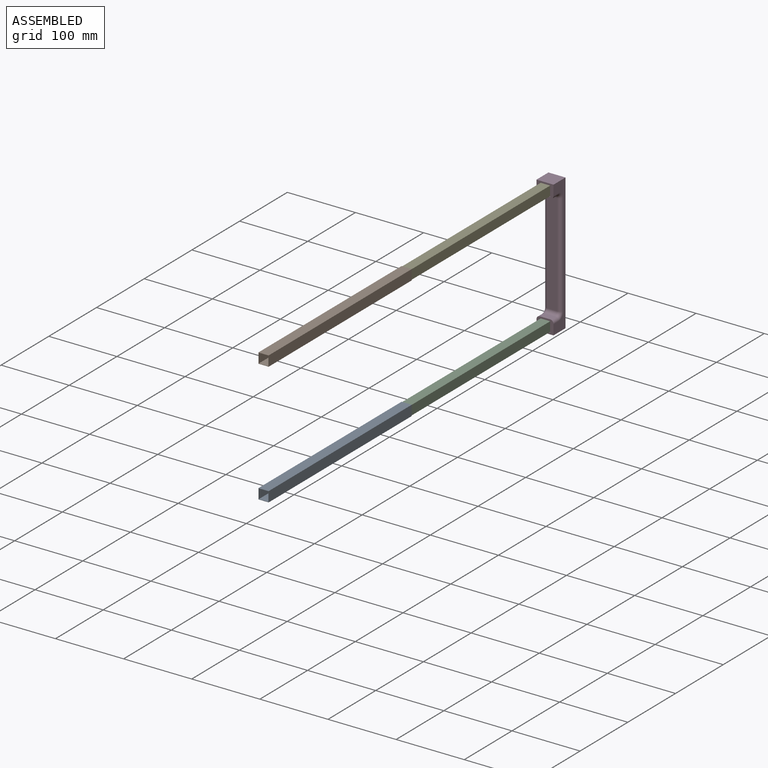
[diagram: assembled view]
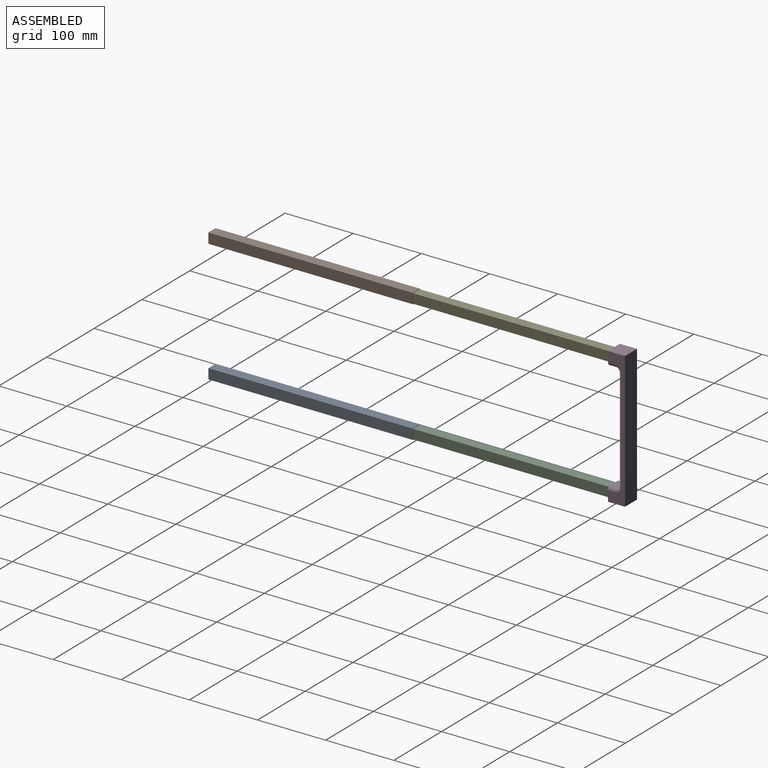
[diagram: assembled view, second angle]
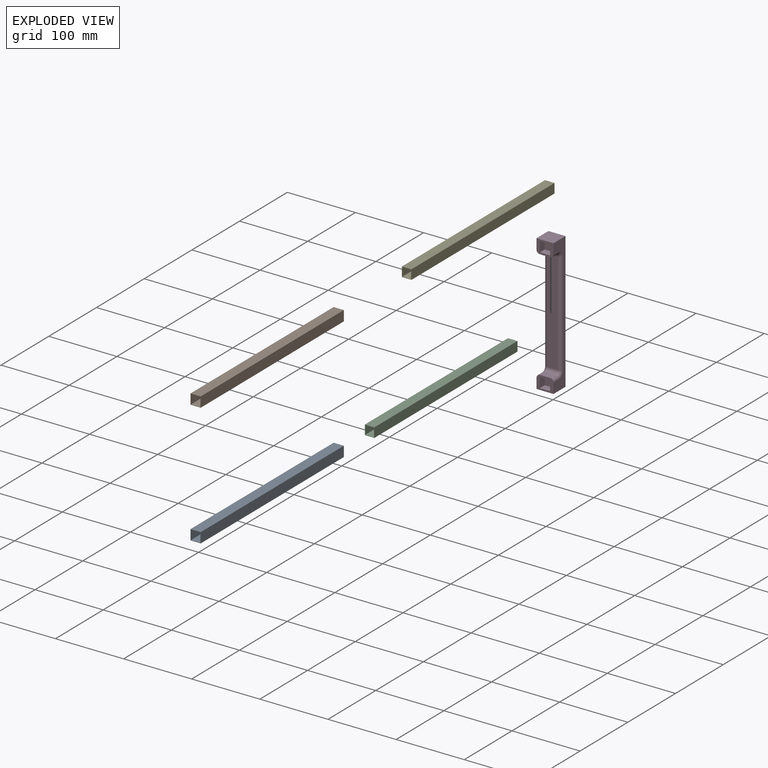
[diagram: exploded view]
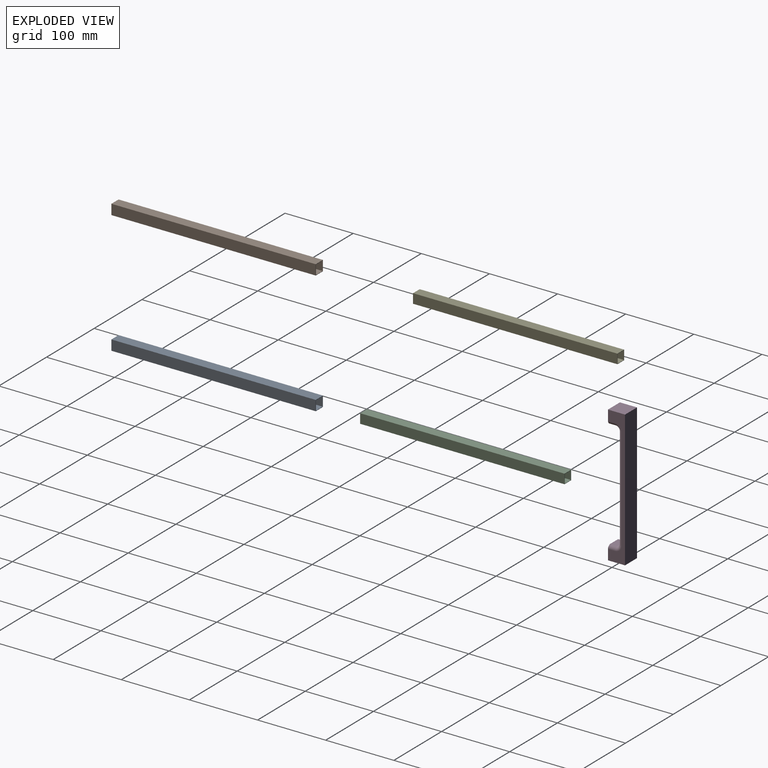
[diagram: exploded view, second angle]
ASSEMBLY  parts=5 mates=4
PART A: 20 faces, bbox 15x300x15 mm
  f0: plane 300x15mm, normal (0,0,1), area 4500mm2, adj f1,f7,f8,f9
  f1: plane 300x15mm, normal (-1,0,0), area 4500mm2, adj f0,f2,f8,f9
  f2: plane 300x15mm, normal (0,0,-1), area 4500mm2, adj f1,f7,f8,f9
  f3: plane 300x14mm, normal (1,0,0), area 4200mm2, adj f4,f6,f8,f9
  f4: plane 300x14mm, normal (0,0,-1), area 4200mm2, adj f3,f5,f8,f9
  f5: plane 300x14mm, normal (-1,0,0), area 4200mm2, adj f4,f6,f8,f9
  f6: plane 300x14mm, normal (0,0,1), area 4200mm2, adj f3,f5,f8,f9
  f7: plane 300x15mm, normal (1,0,0), area 4500mm2, adj f0,f2,f8,f9
  f8: plane 15x15mm, normal (0,-1,0), area 29mm2, adj f0,f1,f2,f3,f4,f5,f6,f7
  f9: plane 15x15mm, normal (0,1,0), area 29mm2, adj f0,f1,f2,f3,f4,f5,f6,f7
  f10: plane 299.6x14.6mm, normal (0,0,-1), area 4374.2mm2, adj f11,f17,f18,f19
  f11: plane 299.6x14.6mm, normal (1,0,0), area 4374.2mm2, adj f10,f12,f18,f19
  f12: plane 299.6x14.6mm, normal (0,0,1), area 4374.2mm2, adj f11,f17,f18,f19
  f13: plane 299.6x14.4mm, normal (-1,0,0), area 4314.2mm2, adj f14,f16,f18,f19
  f14: plane 299.6x14.4mm, normal (0,0,1), area 4314.2mm2, adj f13,f15,f18,f19
  f15: plane 299.6x14.4mm, normal (1,0,0), area 4314.2mm2, adj f14,f16,f18,f19
  f16: plane 299.6x14.4mm, normal (0,0,-1), area 4314.2mm2, adj f13,f15,f18,f19
  f17: plane 299.6x14.6mm, normal (-1,0,0), area 4374.2mm2, adj f10,f12,f18,f19
  f18: plane 14.6x14.6mm, normal (0,1,0), area 5.8mm2, adj f10,f11,f12,f13,f14,f15,f16,f17
  f19: plane 14.6x14.6mm, normal (0,-1,0), area 5.8mm2, adj f10,f11,f12,f13,f14,f15,f16,f17
PART B: same geometry as A
PART C: 20 faces, bbox 14x300x14 mm
  f0: plane 14x14mm, normal (0,-1,0), area 27mm2, adj f2,f3,f4,f5,f6,f7,f8,f9
  f1: plane 14x14mm, normal (0,1,0), area 27mm2, adj f2,f3,f4,f5,f6,f7,f8,f9
  f2: plane 300x14mm, normal (0,0,1), area 4200mm2, adj f0,f1,f3,f5
  f3: plane 300x14mm, normal (-1,0,0), area 4200mm2, adj f0,f1,f2,f4
  f4: plane 300x14mm, normal (0,0,-1), area 4200mm2, adj f0,f1,f3,f5
  f5: plane 300x14mm, normal (1,0,0), area 4200mm2, adj f0,f1,f2,f4
  f6: plane 300x13mm, normal (1,0,0), area 3900mm2, adj f0,f1,f7,f9
  f7: plane 300x13mm, normal (0,0,-1), area 3900mm2, adj f0,f1,f6,f8
  f8: plane 300x13mm, normal (-1,0,0), area 3900mm2, adj f0,f1,f7,f9
  f9: plane 300x13mm, normal (0,0,1), area 3900mm2, adj f0,f1,f6,f8
  f10: plane 13.6x13.6mm, normal (0,1,0), area 5.4mm2, adj f12,f13,f14,f15,f16,f17,f18,f19
  f11: plane 13.6x13.6mm, normal (0,-1,0), area 5.4mm2, adj f12,f13,f14,f15,f16,f17,f18,f19
  f12: plane 299.6x13.6mm, normal (0,0,-1), area 4074.6mm2, adj f10,f11,f13,f15
  f13: plane 299.6x13.6mm, normal (1,0,0), area 4074.6mm2, adj f10,f11,f12,f14
  f14: plane 299.6x13.6mm, normal (0,0,1), area 4074.6mm2, adj f10,f11,f13,f15
  f15: plane 299.6x13.6mm, normal (-1,0,0), area 4074.6mm2, adj f10,f11,f12,f14
  f16: plane 299.6x13.4mm, normal (-1,0,0), area 4014.6mm2, adj f10,f11,f17,f19
  f17: plane 299.6x13.4mm, normal (0,0,1), area 4014.6mm2, adj f10,f11,f16,f18
  f18: plane 299.6x13.4mm, normal (1,0,0), area 4014.6mm2, adj f10,f11,f17,f19
  f19: plane 299.6x13.4mm, normal (0,0,-1), area 4014.6mm2, adj f10,f11,f16,f18
PART D: 32 faces, bbox 200x25x25 mm
  f0: plane 25x20mm, normal (0,-1,0), area 264.3mm2, adj f3,f4,f8,f9,f10,f11,f12,f13
  f1: plane 25x25mm, normal (1,0,0), area 625mm2, adj f2,f7,f8,f9
  f2: plane 200x25mm, normal (0,1,0), area 5000mm2, adj f1,f3,f8,f9
  f3: plane 25x25mm, normal (-1,0,0), area 625mm2, adj f0,f2,f8,f9
  f4: plane 15x10mm, normal (1,0,0), area 150mm2, adj f0,f25,f29,f31
  f5: plane 150x15mm, normal (0,-1,0), area 2250mm2, adj f23,f24,f28,f29
  f6: plane 15x10mm, normal (-1,0,0), area 150mm2, adj f7,f20,f22,f23
  f7: plane 25x20mm, normal (0,-1,0), area 264.3mm2, adj f1,f6,f8,f9,f15,f16,f17,f18
  f8: plane 200x25mm, normal (0,0,1), area 1642.9mm2, adj f0,f1,f2,f3,f7,f22,f26,f28
  f9: plane 200x25mm, normal (0,0,-1), area 1642.9mm2, adj f0,f1,f2,f3,f7,f20,f21,f24
  f10: plane 15x10mm, normal (0,0,-1), area 150mm2, adj f0,f11,f13,f14
  f11: plane 15x10mm, normal (1,0,0), area 150mm2, adj f0,f10,f12,f14
  f12: plane 15x10mm, normal (0,0,1), area 150mm2, adj f0,f11,f13,f14
  f13: plane 15x10mm, normal (-1,0,0), area 150mm2, adj f0,f10,f12,f14
  f14: plane 15x15mm, normal (0,-1,0), area 225mm2, adj f10,f11,f12,f13
  f15: plane 15x10mm, normal (0,0,-1), area 150mm2, adj f7,f16,f18,f19
  f16: plane 15x10mm, normal (1,0,0), area 150mm2, adj f7,f15,f17,f19
  f17: plane 15x10mm, normal (0,0,1), area 150mm2, adj f7,f16,f18,f19
  f18: plane 15x10mm, normal (-1,0,0), area 150mm2, adj f7,f15,f17,f19
  f19: plane 15x15mm, normal (0,-1,0), area 225mm2, adj f15,f16,f17,f18
  f20: cylinder r=5mm len=10mm, axis (0,-1,0), area 78.5mm2, adj f6,f7,f9,f21
  f21: torus R=10mm, axis (0,0,1), area 84.1mm2, adj f9,f20,f23,f24
  f22: cylinder r=5mm len=10mm, axis (0,1,0), area 78.5mm2, adj f6,f7,f8,f26
  f23: cylinder r=5mm len=15mm, axis (0,0,1), area 117.8mm2, adj f5,f6,f21,f26
  f24: cylinder r=5mm len=150mm, axis (1,0,0), area 1178.1mm2, adj f5,f9,f21,f27
  f25: cylinder r=5mm len=10mm, axis (0,1,0), area 78.5mm2, adj f0,f4,f9,f27
  f26: torus R=10mm, axis (0,0,1), area 84.1mm2, adj f8,f22,f23,f28
  f27: torus R=10mm, axis (0,0,1), area 84.1mm2, adj f9,f24,f25,f29
  f28: cylinder r=5mm len=150mm, axis (-1,0,0), area 1178.1mm2, adj f5,f8,f26,f30
  f29: cylinder r=5mm len=15mm, axis (0,0,-1), area 117.8mm2, adj f4,f5,f27,f30
  f30: torus R=10mm, axis (0,0,1), area 84.1mm2, adj f8,f28,f29,f31
  f31: cylinder r=5mm len=10mm, axis (0,-1,0), area 78.5mm2, adj f0,f4,f8,f30
PART E: same geometry as C
PLACE A rot(axis=(1,0,0),180deg) t=(490.78,6.55,-63.54)mm
PLACE B rot(axis=(0,1,0),0deg) t=(490.78,306.55,116.46)mm
PLACE C rot(axis=(0.71,0,0.71),180deg) t=(490.78,306.55,-63.54)mm
PLACE D rot(axis=(0,1,0),90deg) t=(478.28,621.55,26.46)mm
PLACE E rot(axis=(0.71,0,0.71),180deg) t=(490.78,306.55,116.46)mm
MATE fastened C.f0 <-> D.f19  axis (0,1,0) through (490.78,606.55,-63.54)mm
MATE fastened E.f0 <-> D.f14  axis (0,1,0) through (490.78,606.55,116.46)mm
MATE slider C.f1 <-> A.f8  axis (0,-1,0) through (490.78,306.55,-63.54)mm
MATE slider E.f1 <-> B.f9  axis (0,-1,0) through (490.78,306.55,116.46)mm
